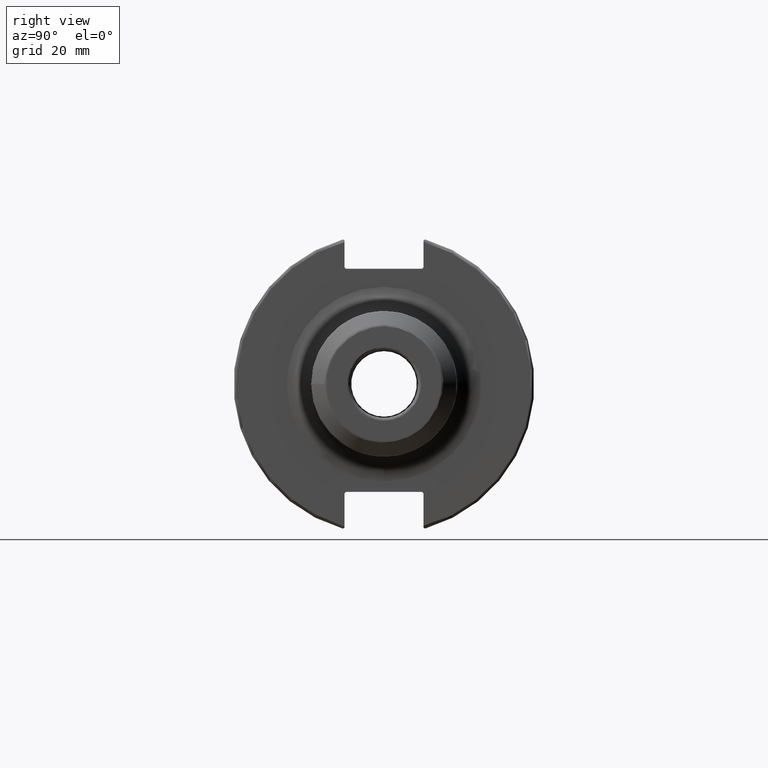
[diagram: clean part render]
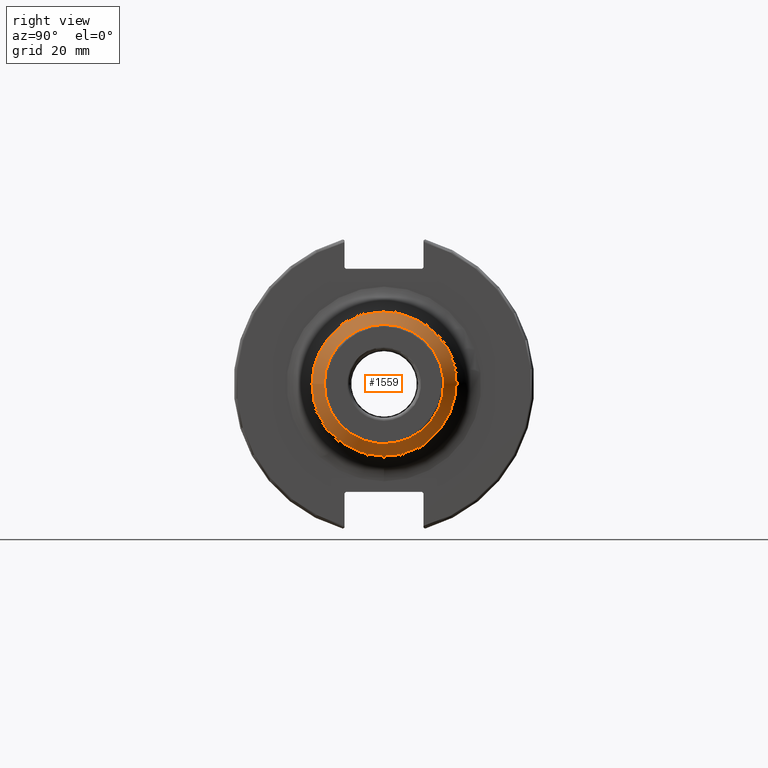
[diagram: same view with one face highlighted and labeled with its STEP entity id]
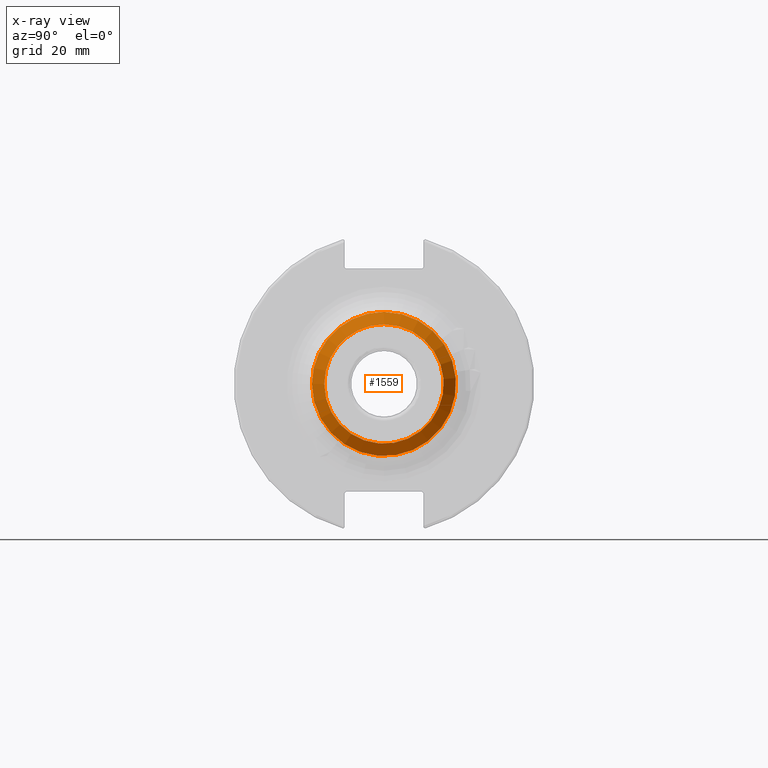
[diagram: x-ray of the same camera — body ghosted, the highlighted face saturated]
A machine part, right view. The second image highlights one B-rep face of the part: STEP entity #1559.
The next image is the same camera in x-ray: the body ghosted, the highlighted face saturated — about 0% of this face is hidden behind the body in this view.
In plain terms, the highlighted conical surface has half-angle 45 deg.
Its self-contained STEP definition (entity closure, byte-faithful):
#45=CONICAL_SURFACE('',#1682,21.563,0.785398163397448);
#107=LINE('',#2469,#201);
#201=VECTOR('',#1882,21.563);
#352=FACE_OUTER_BOUND('',#445,.T.);
#445=EDGE_LOOP('',(#1065,#1066,#1067,#1068,#1069,#1070));
#557=CIRCLE('',#1677,23.5831067811865);
#558=CIRCLE('',#1678,23.5831067811865);
#562=CIRCLE('',#1683,19.5428932188135);
#563=CIRCLE('',#1684,19.5428932188135);
#646=VERTEX_POINT('',#2456);
#647=VERTEX_POINT('',#2457);
#650=VERTEX_POINT('',#2466);
#651=VERTEX_POINT('',#2467);
#812=EDGE_CURVE('',#646,#647,#557,.T.);
#813=EDGE_CURVE('',#647,#646,#558,.T.);
#817=EDGE_CURVE('',#650,#651,#562,.T.);
#818=EDGE_CURVE('',#650,#647,#107,.T.);
#819=EDGE_CURVE('',#651,#650,#563,.T.);
#1065=ORIENTED_EDGE('',*,*,#817,.F.);
#1066=ORIENTED_EDGE('',*,*,#818,.T.);
#1067=ORIENTED_EDGE('',*,*,#812,.F.);
#1068=ORIENTED_EDGE('',*,*,#813,.F.);
#1069=ORIENTED_EDGE('',*,*,#818,.F.);
#1070=ORIENTED_EDGE('',*,*,#819,.F.);
#1559=ADVANCED_FACE('',(#352),#45,.T.);
#1677=AXIS2_PLACEMENT_3D('',#2458,#1868,#1869);
#1678=AXIS2_PLACEMENT_3D('',#2459,#1870,#1871);
#1682=AXIS2_PLACEMENT_3D('',#2465,#1878,#1879);
#1683=AXIS2_PLACEMENT_3D('',#2468,#1880,#1881);
#1684=AXIS2_PLACEMENT_3D('',#2470,#1883,#1884);
#1868=DIRECTION('center_axis',(-1.,0.,0.));
#1869=DIRECTION('ref_axis',(0.,-1.,3.06161699786838E-17));
#1870=DIRECTION('center_axis',(-1.,0.,0.));
#1871=DIRECTION('ref_axis',(0.,-1.,3.06161699786838E-17));
#1878=DIRECTION('center_axis',(-1.,0.,0.));
#1879=DIRECTION('ref_axis',(0.,1.,0.));
#1880=DIRECTION('center_axis',(1.,0.,0.));
#1881=DIRECTION('ref_axis',(0.,-1.,3.06161699786838E-17));
#1882=DIRECTION('',(-0.707106781186547,-0.707106781186547,-8.65956056235493E-17));
#1883=DIRECTION('center_axis',(1.,0.,0.));
#1884=DIRECTION('ref_axis',(0.,-1.,3.06161699786838E-17));
#2456=CARTESIAN_POINT('',(90.9668932188135,-2.88809762335303E-15,23.5831067811865));
#2457=CARTESIAN_POINT('',(90.9668932188135,-23.5831067811865,-2.88809762335303E-15));
#2458=CARTESIAN_POINT('Origin',(90.9668932188135,0.,-3.61012202919129E-15));
#2459=CARTESIAN_POINT('Origin',(90.9668932188135,0.,-3.61012202919129E-15));
#2465=CARTESIAN_POINT('Origin',(92.987,0.,0.));
#2466=CARTESIAN_POINT('',(95.0071067811865,-19.5428932188135,-2.39331416264984E-15));
#2467=CARTESIAN_POINT('',(95.0071067811865,-2.39331416264984E-15,19.5428932188135));
#2468=CARTESIAN_POINT('Origin',(95.0071067811865,0.,-2.9916427033123E-15));
#2469=CARTESIAN_POINT('',(92.987,-21.563,-2.64070589300144E-15));
#2470=CARTESIAN_POINT('Origin',(95.0071067811865,0.,-2.9916427033123E-15));